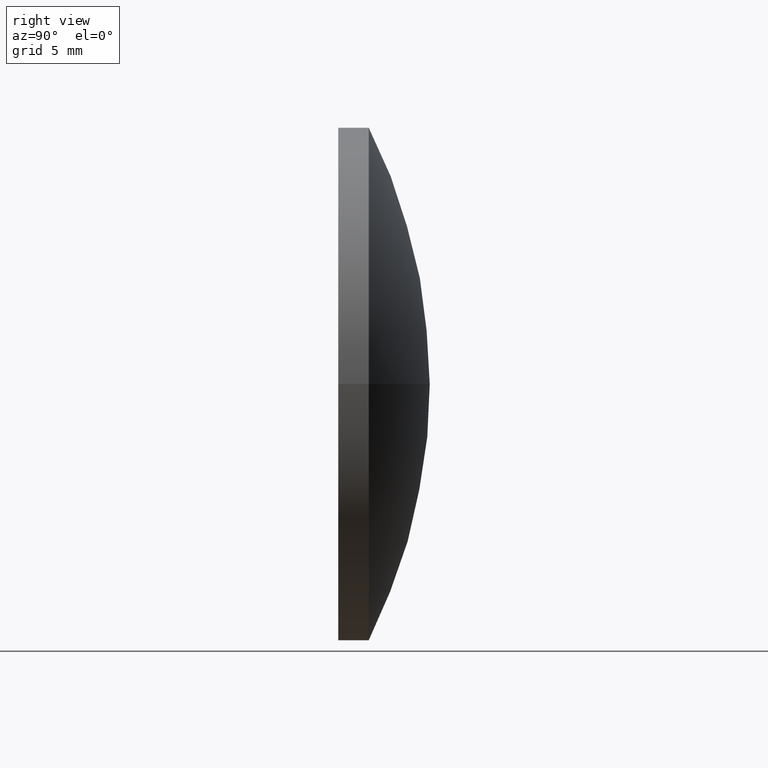
[diagram: clean part render]
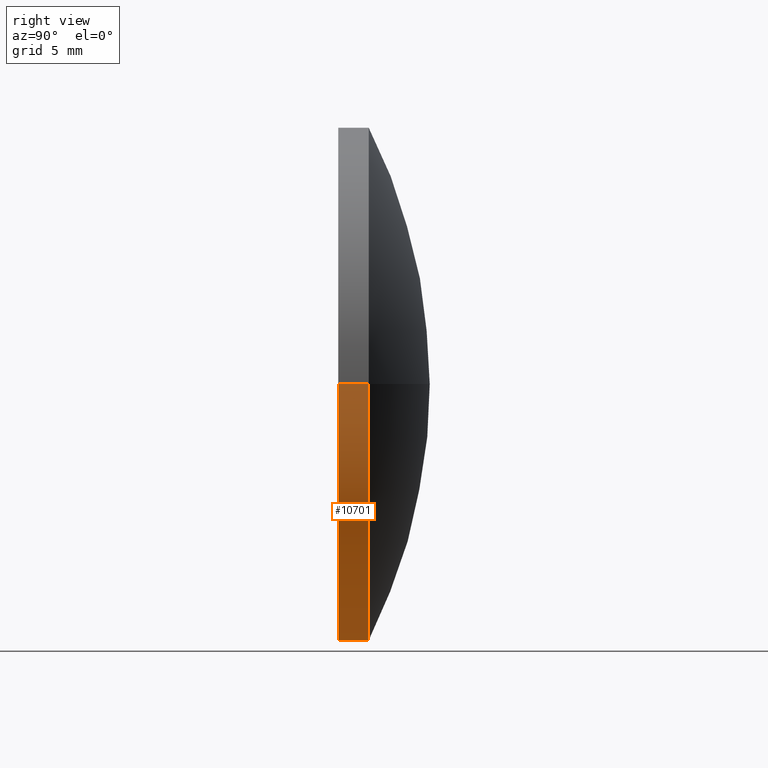
[diagram: same view with one face highlighted and labeled with its STEP entity id]
A machine part, right view. The second image highlights one B-rep face of the part: STEP entity #10701.
In plain terms, the highlighted cylindrical surface (partial cylindrical patch) has radius 16.85 mm, axis along (-0, -1, -0).
Its self-contained STEP definition (entity closure, byte-faithful):
#193 = FACE_OUTER_BOUND ( 'NONE', #2938, .T. ) ;
#766 = DIRECTION ( 'NONE',  ( -5.836103876533815000E-015, -1.000000000000000000, -0.0000000000000000000 ) ) ;
#840 = AXIS2_PLACEMENT_3D ( 'NONE', #2851, #766, #10088 ) ;
#870 = CARTESIAN_POINT ( 'NONE',  ( -2.334441550613477400E-014, 9.367506770274758300E-014, 0.0000000000000000000 ) ) ;
#1112 = DIRECTION ( 'NONE',  ( -5.836103876533815000E-015, -1.000000000000000000, -0.0000000000000000000 ) ) ;
#1249 = CARTESIAN_POINT ( 'NONE',  ( 0.0000000000000000000, 4.000000000000010700, 0.0000000000000000000 ) ) ;
#1845 = VECTOR ( 'NONE', #5109, 1000.000000000000000 ) ;
#2041 = VERTEX_POINT ( 'NONE', #8274 ) ;
#2365 = DIRECTION ( 'NONE',  ( -5.836103876533815000E-015, -1.000000000000000000, -0.0000000000000000000 ) ) ;
#2851 = CARTESIAN_POINT ( 'NONE',  ( -1.167220775306714700E-014, 2.000000000000093300, 0.0000000000000000000 ) ) ;
#2938 = EDGE_LOOP ( 'NONE', ( #11756, #4610, #7145, #4862 ) ) ;
#4231 = CIRCLE ( 'NONE', #9792, 16.85000000000002300 ) ;
#4554 = CARTESIAN_POINT ( 'NONE',  ( 16.84999999999999800, -4.663282616847321200E-015, 0.0000000000000000000 ) ) ;
#4610 = ORIENTED_EDGE ( 'NONE', *, *, #12858, .T. ) ;
#4862 = ORIENTED_EDGE ( 'NONE', *, *, #6693, .F. ) ;
#5068 = CARTESIAN_POINT ( 'NONE',  ( -16.85000000000004400, 1.920134180223424900E-013, 2.063529856563293800E-015 ) ) ;
#5109 = DIRECTION ( 'NONE',  ( -5.836103876533815000E-015, -1.000000000000000000, -0.0000000000000000000 ) ) ;
#6162 = DIRECTION ( 'NONE',  ( -5.836103876533815000E-015, -1.000000000000000000, -0.0000000000000000000 ) ) ;
#6480 = LINE ( 'NONE', #11751, #13144 ) ;
#6693 = EDGE_CURVE ( 'NONE', #6710, #9789, #4231, .T. ) ;
#6710 = VERTEX_POINT ( 'NONE', #5068 ) ;
#7145 = ORIENTED_EDGE ( 'NONE', *, *, #7863, .T. ) ;
#7198 = CYLINDRICAL_SURFACE ( 'NONE', #11272, 16.85000000000001200 ) ;
#7440 = DIRECTION ( 'NONE',  ( 1.000000000000000000, -5.816728569299081700E-015, 0.0000000000000000000 ) ) ;
#7863 = EDGE_CURVE ( 'NONE', #11816, #9789, #6480, .T. ) ;
#8145 = DIRECTION ( 'NONE',  ( 1.000000000000000000, -5.836103876533814200E-015, 0.0000000000000000000 ) ) ;
#8274 = CARTESIAN_POINT ( 'NONE',  ( -16.85000000000001200, 2.000000000000191800, 2.063529856563290600E-015 ) ) ;
#9152 = CARTESIAN_POINT ( 'NONE',  ( 16.84999999999999100, 1.999999999999994900, 0.0000000000000000000 ) ) ;
#9771 = CIRCLE ( 'NONE', #840, 16.85000000000000100 ) ;
#9789 = VERTEX_POINT ( 'NONE', #4554 ) ;
#9792 = AXIS2_PLACEMENT_3D ( 'NONE', #870, #6162, #8145 ) ;
#10088 = DIRECTION ( 'NONE',  ( 1.000000000000000000, -5.842466306331382200E-015, 0.0000000000000000000 ) ) ;
#10701 = ADVANCED_FACE ( 'NONE', ( #193 ), #7198, .T. ) ;
#11272 = AXIS2_PLACEMENT_3D ( 'NONE', #1249, #1112, #7440 ) ;
#11320 = CARTESIAN_POINT ( 'NONE',  ( -16.85000000000001200, 4.000000000000108400, 2.063529856563291400E-015 ) ) ;
#11366 = EDGE_CURVE ( 'NONE', #2041, #6710, #11735, .T. ) ;
#11735 = LINE ( 'NONE', #11320, #1845 ) ;
#11751 = CARTESIAN_POINT ( 'NONE',  ( 16.85000000000001200, 3.999999999999912500, 0.0000000000000000000 ) ) ;
#11756 = ORIENTED_EDGE ( 'NONE', *, *, #11366, .F. ) ;
#11816 = VERTEX_POINT ( 'NONE', #9152 ) ;
#12858 = EDGE_CURVE ( 'NONE', #2041, #11816, #9771, .T. ) ;
#13144 = VECTOR ( 'NONE', #2365, 1000.000000000000000 ) ;